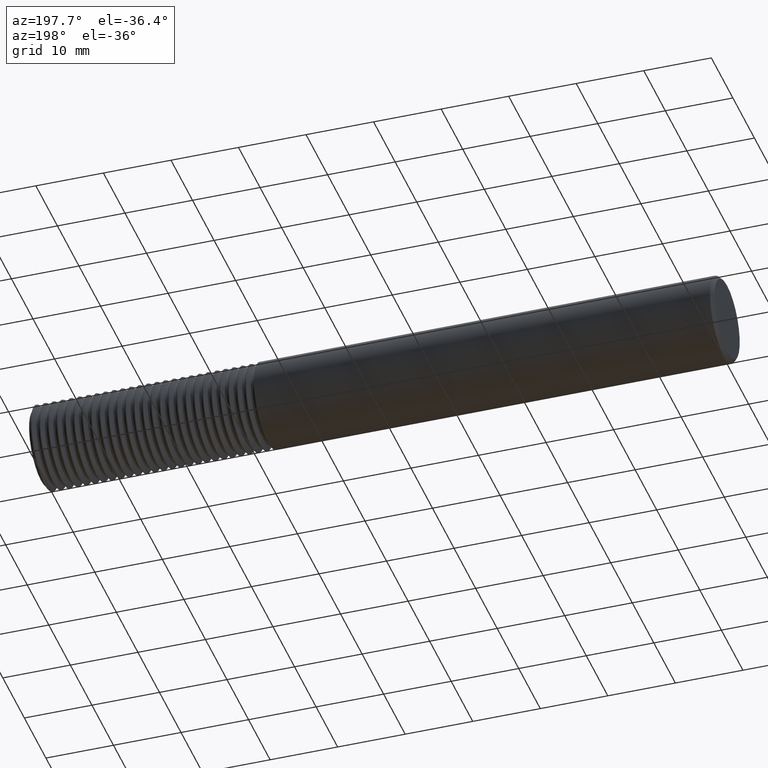
[diagram: clean part render]
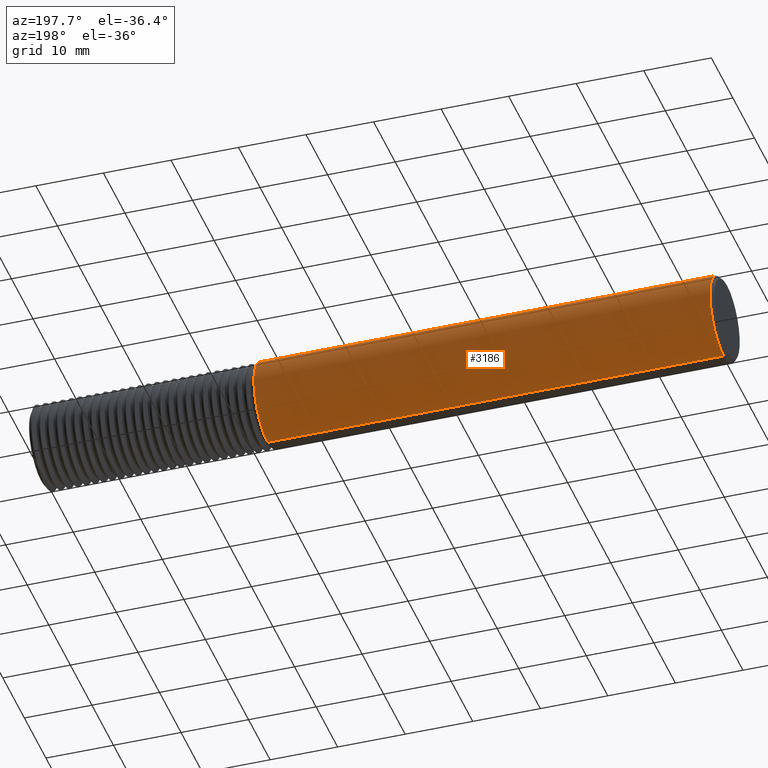
[diagram: same view with one face highlighted and labeled with its STEP entity id]
A machine part, auxiliary view. The second image highlights one B-rep face of the part: STEP entity #3186.
In plain terms, the highlighted cylindrical surface (partial cylindrical patch) has radius 6.3462 mm, axis along (1, -0, -0).
Its self-contained STEP definition (entity closure, byte-faithful):
#111 = CIRCLE ( 'NONE', #3228, 0.2498499999999999888 ) ;
#531 = LINE ( 'NONE', #3175, #4911 ) ;
#770 = ORIENTED_EDGE ( 'NONE', *, *, #3895, .F. ) ;
#783 = CARTESIAN_POINT ( 'NONE',  ( 0.01999999999999978531, 0.000000000000000000, -0.2498499999999999888 ) ) ;
#873 = CIRCLE ( 'NONE', #3975, 0.2498499999999999888 ) ;
#954 = DIRECTION ( 'NONE',  ( 1.000000000000000000, -0.000000000000000000, -0.000000000000000000 ) ) ;
#1057 = VERTEX_POINT ( 'NONE', #1873 ) ;
#1122 = EDGE_CURVE ( 'NONE', #2357, #1057, #531, .T. ) ;
#1267 = DIRECTION ( 'NONE',  ( -1.000000000000000000, -0.000000000000000000, -0.000000000000000000 ) ) ;
#1315 = DIRECTION ( 'NONE',  ( 0.000000000000000000, 0.000000000000000000, -1.000000000000000000 ) ) ;
#1549 = LINE ( 'NONE', #4140, #3092 ) ;
#1625 = DIRECTION ( 'NONE',  ( 0.000000000000000000, 0.000000000000000000, 1.000000000000000000 ) ) ;
#1686 = CYLINDRICAL_SURFACE ( 'NONE', #3142, 0.2498499999999999888 ) ;
#1825 = ORIENTED_EDGE ( 'NONE', *, *, #3393, .T. ) ;
#1859 = VERTEX_POINT ( 'NONE', #5225 ) ;
#1873 = CARTESIAN_POINT ( 'NONE',  ( 2.678407069094895565, 0.000000000000000000, 0.2498499999999999333 ) ) ;
#2357 = VERTEX_POINT ( 'NONE', #4544 ) ;
#2588 = VERTEX_POINT ( 'NONE', #783 ) ;
#3092 = VECTOR ( 'NONE', #5425, 39.37007874015748143 ) ;
#3130 = EDGE_CURVE ( 'NONE', #1057, #1859, #111, .T. ) ;
#3142 = AXIS2_PLACEMENT_3D ( 'NONE', #3827, #5099, #1315 ) ;
#3175 = CARTESIAN_POINT ( 'NONE',  ( 4.000000000000000000, 3.059780027669661931E-17, 0.2498499999999999888 ) ) ;
#3186 = ADVANCED_FACE ( 'NONE', ( #5443 ), #1686, .T. ) ;
#3228 = AXIS2_PLACEMENT_3D ( 'NONE', #4613, #1267, #1625 ) ;
#3267 = ORIENTED_EDGE ( 'NONE', *, *, #1122, .T. ) ;
#3393 = EDGE_CURVE ( 'NONE', #2588, #2357, #873, .T. ) ;
#3827 = CARTESIAN_POINT ( 'NONE',  ( 4.000000000000000000, 0.000000000000000000, 0.000000000000000000 ) ) ;
#3895 = EDGE_CURVE ( 'NONE', #2588, #1859, #1549, .T. ) ;
#3975 = AXIS2_PLACEMENT_3D ( 'NONE', #4597, #4898, #4455 ) ;
#4140 = CARTESIAN_POINT ( 'NONE',  ( 4.000000000000000000, 0.000000000000000000, -0.2498499999999999888 ) ) ;
#4201 = ORIENTED_EDGE ( 'NONE', *, *, #3130, .T. ) ;
#4455 = DIRECTION ( 'NONE',  ( 0.000000000000000000, 0.000000000000000000, 1.000000000000000000 ) ) ;
#4544 = CARTESIAN_POINT ( 'NONE',  ( 0.01999999999999978531, 3.059780027669661931E-17, 0.2498499999999999888 ) ) ;
#4597 = CARTESIAN_POINT ( 'NONE',  ( 0.01999999999999978531, 0.000000000000000000, 0.000000000000000000 ) ) ;
#4613 = CARTESIAN_POINT ( 'NONE',  ( 2.678407069094895565, 0.000000000000000000, 0.000000000000000000 ) ) ;
#4898 = DIRECTION ( 'NONE',  ( 1.000000000000000000, -0.000000000000000000, -0.000000000000000000 ) ) ;
#4911 = VECTOR ( 'NONE', #954, 39.37007874015748143 ) ;
#4944 = EDGE_LOOP ( 'NONE', ( #1825, #3267, #4201, #770 ) ) ;
#5099 = DIRECTION ( 'NONE',  ( 1.000000000000000000, -0.000000000000000000, -0.000000000000000000 ) ) ;
#5225 = CARTESIAN_POINT ( 'NONE',  ( 2.678407069094895565, 3.059780027669661314E-17, -0.2498499999999999333 ) ) ;
#5425 = DIRECTION ( 'NONE',  ( 1.000000000000000000, -0.000000000000000000, -0.000000000000000000 ) ) ;
#5443 = FACE_OUTER_BOUND ( 'NONE', #4944, .T. ) ;